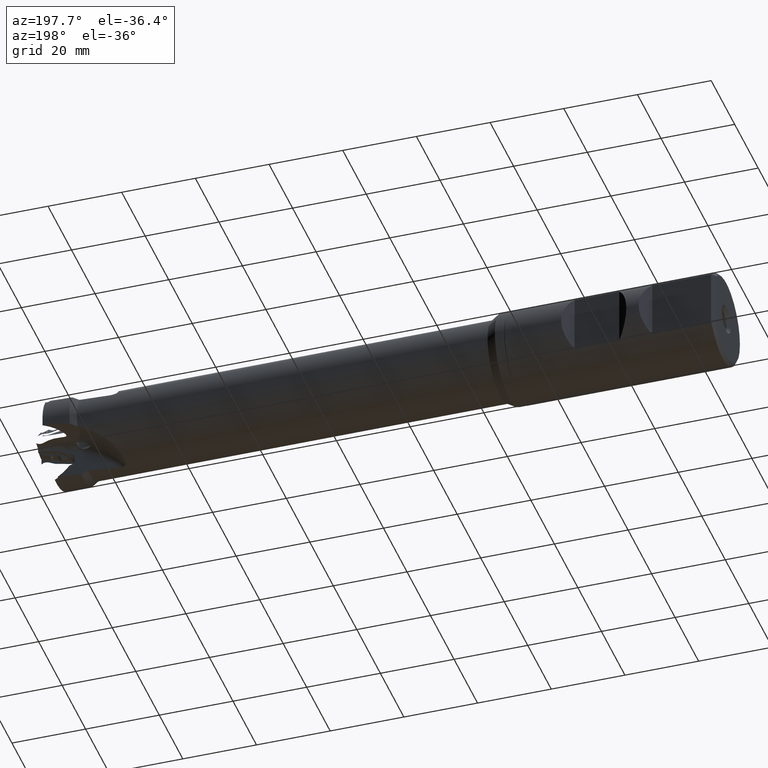
[diagram: clean part render]
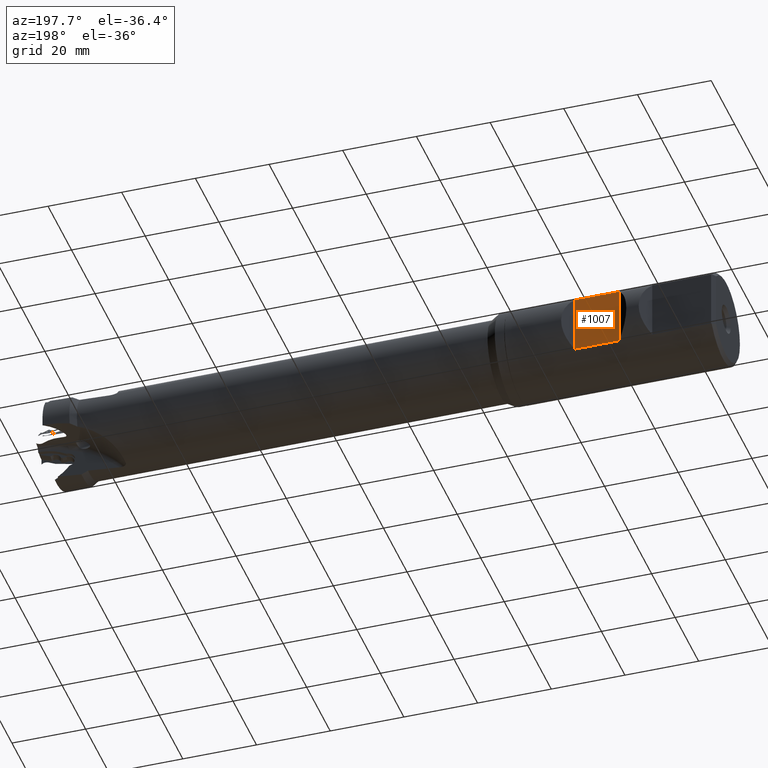
[diagram: same view with one face highlighted and labeled with its STEP entity id]
A machine part, auxiliary view. The second image highlights one B-rep face of the part: STEP entity #1007.
In plain terms, the highlighted planar face has unit normal (0, -1, 0).
Its self-contained STEP definition (entity closure, byte-faithful):
#30 = LINE ( 'NONE', #1755, #3738 ) ;
#174 = PLANE ( 'NONE',  #794 ) ;
#196 = VECTOR ( 'NONE', #2540, 1000.000000000000000 ) ;
#340 = CARTESIAN_POINT ( 'NONE',  ( -159.8500000000000200, 9.700000000000017100, -25.00000000000000000 ) ) ;
#379 = CARTESIAN_POINT ( 'NONE',  ( -147.7500000000000300, 9.700000000000040100, 7.884161337770732000 ) ) ;
#546 = ORIENTED_EDGE ( 'NONE', *, *, #3494, .T. ) ;
#555 = CARTESIAN_POINT ( 'NONE',  ( -1.390646092311991700E-015, 9.700000000000040100, -7.884161337770732000 ) ) ;
#573 = EDGE_CURVE ( 'NONE', #3909, #653, #30, .T. ) ;
#618 = CARTESIAN_POINT ( 'NONE',  ( -147.7500000000000300, 9.700000000000040100, -7.884161337770732000 ) ) ;
#625 = ORIENTED_EDGE ( 'NONE', *, *, #2375, .T. ) ;
#653 = VERTEX_POINT ( 'NONE', #379 ) ;
#794 = AXIS2_PLACEMENT_3D ( 'NONE', #4459, #4476, #2324 ) ;
#1007 = ADVANCED_FACE ( 'NONE', ( #1638 ), #174, .F. ) ;
#1340 = DIRECTION ( 'NONE',  ( -0.0000000000000000000, -0.0000000000000000000, 1.000000000000000000 ) ) ;
#1422 = DIRECTION ( 'NONE',  ( -0.0000000000000000000, -0.0000000000000000000, 1.000000000000000000 ) ) ;
#1563 = VERTEX_POINT ( 'NONE', #3849 ) ;
#1582 = DIRECTION ( 'NONE',  ( -1.000000000000000000, 0.0000000000000000000, 0.0000000000000000000 ) ) ;
#1638 = FACE_OUTER_BOUND ( 'NONE', #3236, .T. ) ;
#1755 = CARTESIAN_POINT ( 'NONE',  ( -147.7500000000000300, 9.700000000000018800, -25.00000000000000000 ) ) ;
#1989 = VECTOR ( 'NONE', #1582, 1000.000000000000000 ) ;
#2324 = DIRECTION ( 'NONE',  ( 1.000000000000000000, 1.433655765270088600E-016, 0.0000000000000000000 ) ) ;
#2375 = EDGE_CURVE ( 'NONE', #2392, #1563, #2605, .T. ) ;
#2392 = VERTEX_POINT ( 'NONE', #2511 ) ;
#2511 = CARTESIAN_POINT ( 'NONE',  ( -159.8500000000000200, 9.700000000000017100, -7.884161337770756000 ) ) ;
#2540 = DIRECTION ( 'NONE',  ( 1.000000000000000000, -0.0000000000000000000, -0.0000000000000000000 ) ) ;
#2605 = LINE ( 'NONE', #340, #4610 ) ;
#2955 = ORIENTED_EDGE ( 'NONE', *, *, #573, .F. ) ;
#3236 = EDGE_LOOP ( 'NONE', ( #2955, #546, #625, #3467 ) ) ;
#3333 = LINE ( 'NONE', #4320, #196 ) ;
#3467 = ORIENTED_EDGE ( 'NONE', *, *, #4405, .T. ) ;
#3494 = EDGE_CURVE ( 'NONE', #3909, #2392, #4007, .T. ) ;
#3738 = VECTOR ( 'NONE', #1340, 1000.000000000000000 ) ;
#3849 = CARTESIAN_POINT ( 'NONE',  ( -159.8500000000000200, 9.700000000000017100, 7.884161337770756000 ) ) ;
#3909 = VERTEX_POINT ( 'NONE', #618 ) ;
#4007 = LINE ( 'NONE', #555, #1989 ) ;
#4320 = CARTESIAN_POINT ( 'NONE',  ( -1.390646092311991700E-015, 9.700000000000040100, 7.884161337770732000 ) ) ;
#4405 = EDGE_CURVE ( 'NONE', #1563, #653, #3333, .T. ) ;
#4459 = CARTESIAN_POINT ( 'NONE',  ( -159.8500000000000200, 9.700000000000017100, -25.00000000000000000 ) ) ;
#4476 = DIRECTION ( 'NONE',  ( 1.433655765270088600E-016, -1.000000000000000000, 0.0000000000000000000 ) ) ;
#4610 = VECTOR ( 'NONE', #1422, 1000.000000000000000 ) ;